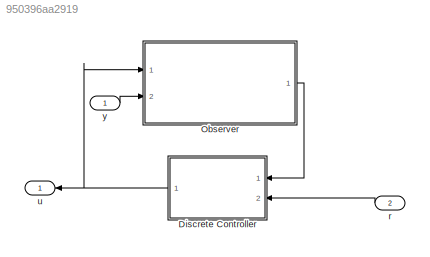
MODEL slx_950396aa2919
KIND model
CONFIG AbsTol = auto
CONFIG EnableMultiTasking = off
CONFIG FixedStep = Ts
CONFIG MaxStep = Ts
CONFIG MinStep = auto
CONFIG RelTol = 1e-3
CONFIG SampleTimeConstraint = Unconstrained
CONFIG Solver = FixedStepDiscrete
CONFIG SolverName = FixedStepDiscrete
CONFIG StartTime = 0.0
CONFIG StopTime = 10.0
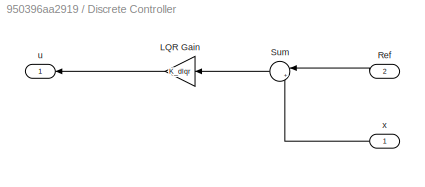
BLOCK [SubSystem] Discrete Controller
  Ports = [2, 1]
  RequestExecContextInheritance = off
BLOCK [Gain] Discrete Controller/LQR Gain
  Gain = K_dlqr
  Multiplication = Matrix(K*u)
  OutDataTypeStr = Inherit: Inherit via internal rule
  ParamDataTypeStr = Inherit: Inherit via internal rule
  SaturateOnIntegerOverflow = off
BLOCK [Inport] Discrete Controller/Ref
  IconDisplay = Port number
  Port = 2
BLOCK [Sum] Discrete Controller/Sum
  IconShape = round
  InputSameDT = off
  Inputs = |+-
  OutDataTypeStr = Inherit: Inherit via internal rule
  Ports = [2, 1]
  SaturateOnIntegerOverflow = off
BLOCK [Outport] Discrete Controller/u
  IconDisplay = Port number
  PortDimensions = 1
BLOCK [Inport] Discrete Controller/x
  IconDisplay = Port number
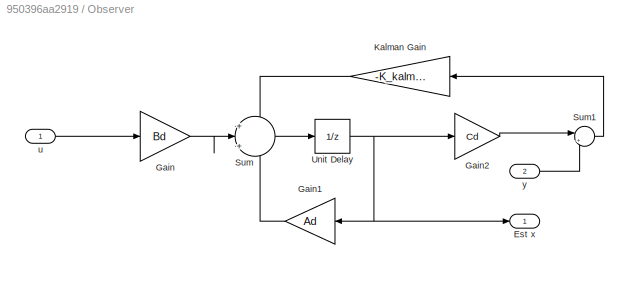
BLOCK [SubSystem] Observer
  Ports = [2, 1]
  RequestExecContextInheritance = off
BLOCK [Outport] Observer/Est x
  IconDisplay = Port number
BLOCK [Gain] Observer/Gain
  Gain = Bd
  Multiplication = Matrix(K*u)
  OutDataTypeStr = Inherit: Inherit via internal rule
  ParamDataTypeStr = Inherit: Inherit via internal rule
  SaturateOnIntegerOverflow = off
BLOCK [Gain] Observer/Gain1
  Gain = Ad
  Multiplication = Matrix(K*u)
  OutDataTypeStr = Inherit: Inherit via internal rule
  ParamDataTypeStr = Inherit: Inherit via internal rule
  SaturateOnIntegerOverflow = off
BLOCK [Gain] Observer/Gain2
  Gain = Cd
  Multiplication = Matrix(K*u)
  OutDataTypeStr = Inherit: Inherit via internal rule
  ParamDataTypeStr = Inherit: Inherit via internal rule
  SaturateOnIntegerOverflow = off
BLOCK [Gain] Observer/Kalman Gain
  Gain = -K_kalman
  Multiplication = Matrix(K*u)
  OutDataTypeStr = Inherit: Inherit via internal rule
  ParamDataTypeStr = Inherit: Inherit via internal rule
  SaturateOnIntegerOverflow = off
BLOCK [Sum] Observer/Sum
  IconShape = round
  InputSameDT = off
  Inputs = +|++
  OutDataTypeStr = Inherit: Inherit via internal rule
  Ports = [3, 1]
  SaturateOnIntegerOverflow = off
BLOCK [Sum] Observer/Sum1
  IconShape = round
  InputSameDT = off
  Inputs = |+-
  OutDataTypeStr = Inherit: Inherit via internal rule
  Ports = [2, 1]
  SaturateOnIntegerOverflow = off
BLOCK [UnitDelay] Observer/Unit Delay
  InitialCondition = x0*0
  InputProcessing = Elements as channels (sample based)
  SampleTime = -1
BLOCK [Inport] Observer/u
  IconDisplay = Port number
BLOCK [Inport] Observer/y
  IconDisplay = Port number
  Port = 2
BLOCK [Inport] r
  IconDisplay = Port number
  Port = 2
  PortDimensions = size(Ad,1)
BLOCK [Outport] u
  IconDisplay = Port number
  PortDimensions = 1
BLOCK [Inport] y
  IconDisplay = Port number
  PortDimensions = size(Cd,1)
LINE Discrete Controller/LQR Gain:1 -> Discrete Controller/u:1
LINE Discrete Controller/Ref:1 -> Discrete Controller/Sum:1
LINE Discrete Controller/Sum:1 -> Discrete Controller/LQR Gain:1
LINE Discrete Controller/x:1 -> Discrete Controller/Sum:2
NET Discrete Controller:1 -> Observer:1, u:1
LINE Observer/Gain1:1 -> Observer/Sum:3
LINE Observer/Gain2:1 -> Observer/Sum1:1
LINE Observer/Gain:1 -> Observer/Sum:2
LINE Observer/Kalman Gain:1 -> Observer/Sum:1
LINE Observer/Sum1:1 -> Observer/Kalman Gain:1
LINE Observer/Sum:1 -> Observer/Unit Delay:1
NET Observer/Unit Delay:1 -> Observer/Est x:1, Observer/Gain1:1, Observer/Gain2:1
LINE Observer/u:1 -> Observer/Gain:1
LINE Observer/y:1 -> Observer/Sum1:2
LINE Observer:1 -> Discrete Controller:1
LINE r:1 -> Discrete Controller:2
LINE y:1 -> Observer:2
note: NET lines group one-source signal fan-out (src -> all destinations, sorted); 1:1 wires keep LINE
